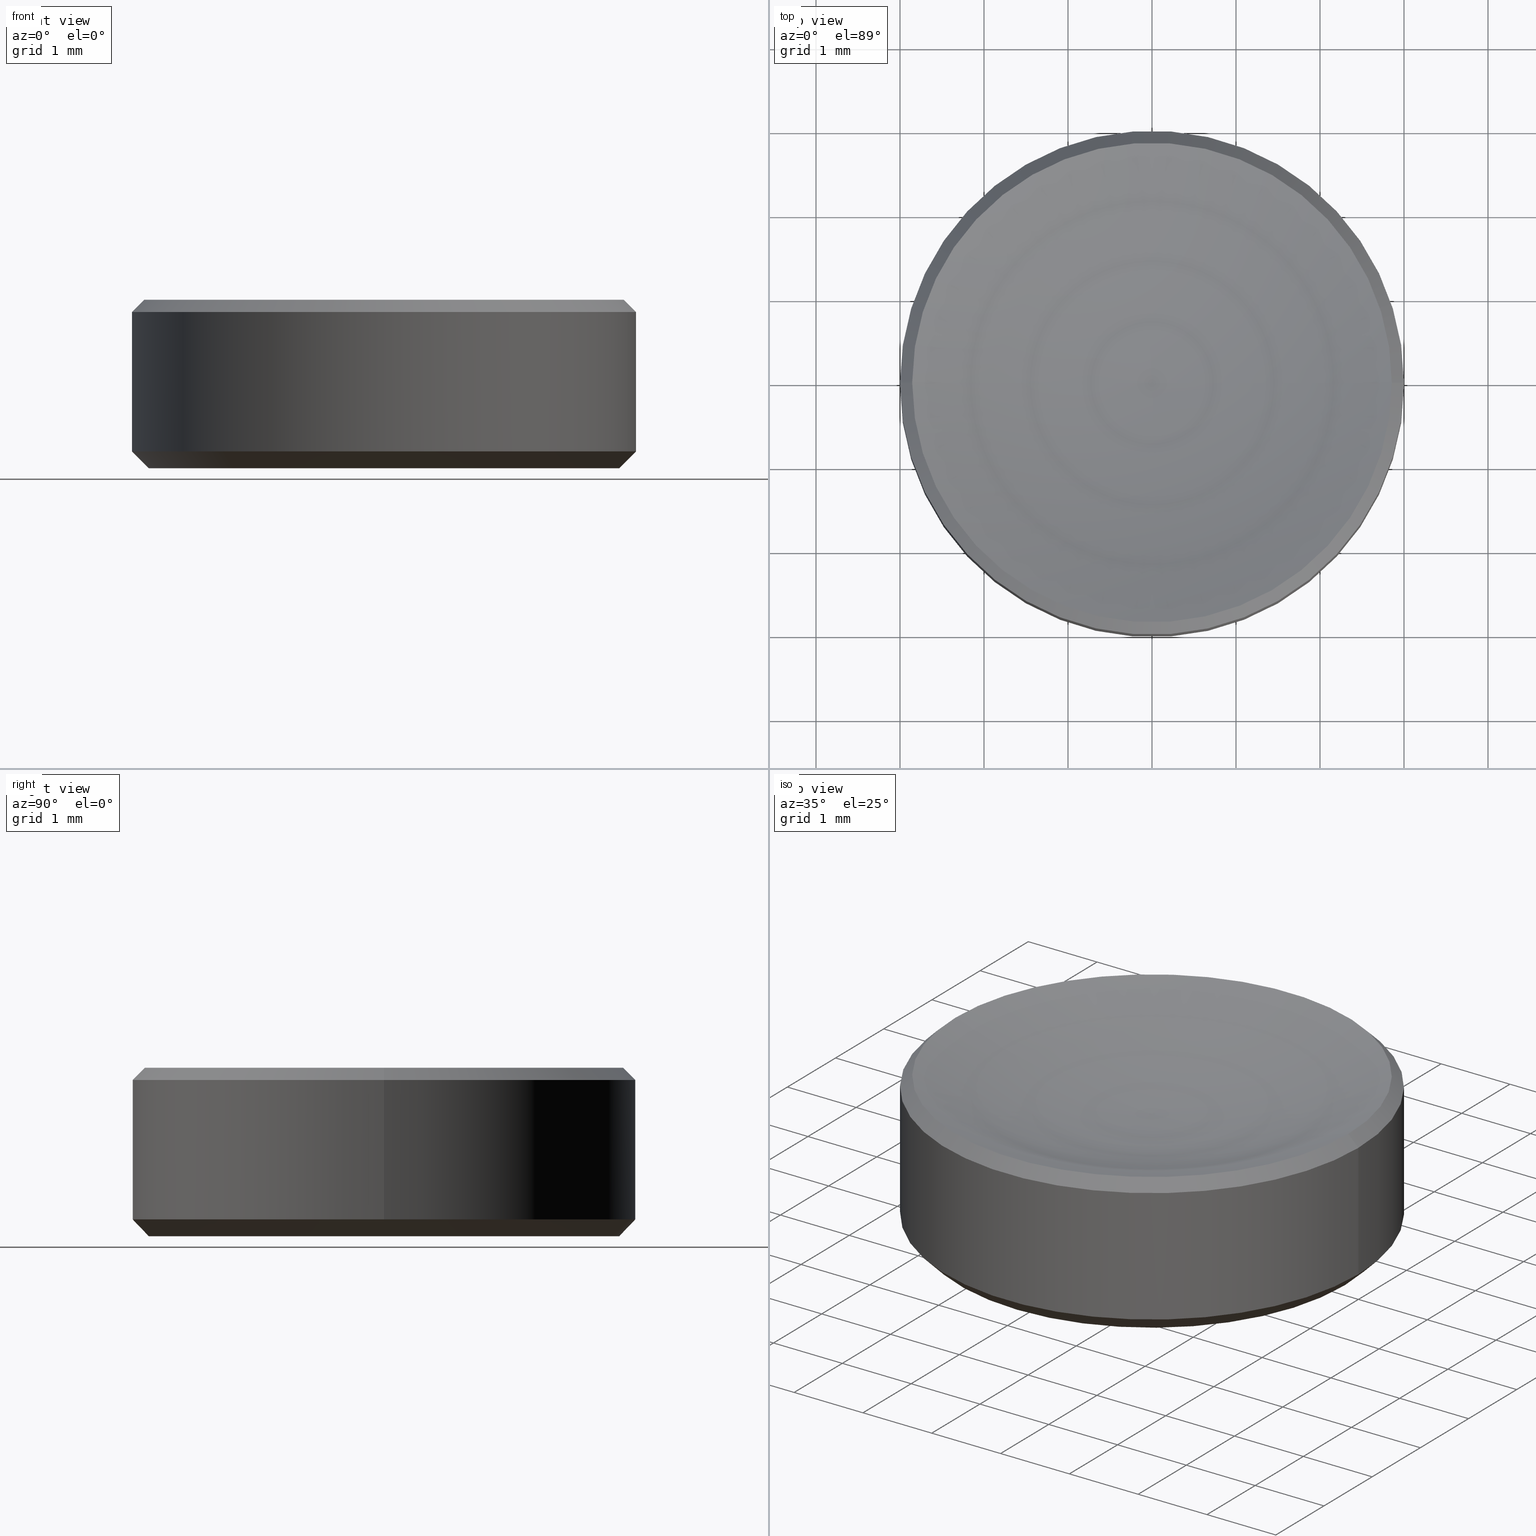
[diagram: canonical four-view strip — front | top / right | iso, engineering-drawing reading convention]
A machine part, canonical four-view strip (front | top / right | iso — engineering-drawing reading convention). The complete STEP part file that produces these views, byte-faithful:
ISO-10303-21;
HEADER;
FILE_DESCRIPTION (( 'STEP AP214' ),
    '1' );
FILE_NAME ('GL13-006A-016.STEP',
    '2022-10-25T12:38:08',
    ( '' ),
    ( '' ),
    'SwSTEP 2.0',
    'SolidWorks 2022',
    '' );
FILE_SCHEMA (( 'AUTOMOTIVE_DESIGN' ));
ENDSEC;

DATA;
#1 = DIRECTION ( 'NONE',  ( -0.000000000000000000, -0.000000000000000000, 1.000000000000000000 ) ) ;
#2 = CARTESIAN_POINT ( 'NONE',  ( 0.000000000000000000, 0.000000000000000000, 1.860000000000000542 ) ) ;
#3 = FACE_OUTER_BOUND ( 'NONE', #8, .T. ) ;
#4 = AXIS2_PLACEMENT_3D ( 'NONE', #81, #102, #186 ) ;
#5 = EDGE_CURVE ( 'NONE', #262, #117, #28, .T. ) ;
#6 = EDGE_CURVE ( 'NONE', #117, #57, #260, .T. ) ;
#7 = DIRECTION ( 'NONE',  ( 1.000000000000000000, 0.000000000000000000, 0.000000000000000000 ) ) ;
#8 = EDGE_LOOP ( 'NONE', ( #210, #163, #265, #141 ) ) ;
#9 = AXIS2_PLACEMENT_3D ( 'NONE', #253, #42, #71 ) ;
#10 = ORIENTED_EDGE ( 'NONE', *, *, #240, .F. ) ;
#11 = DIRECTION ( 'NONE',  ( 1.000000000000000000, 0.000000000000000000, 0.000000000000000000 ) ) ;
#12 = AXIS2_PLACEMENT_3D ( 'NONE', #216, #252, #111 ) ;
#13 = AXIS2_PLACEMENT_3D ( 'NONE', #113, #183, #7 ) ;
#14 = CARTESIAN_POINT ( 'NONE',  ( -3.000000000000000000, 3.673940397442059868E-16, 1.860000000000000542 ) ) ;
#15 = ORIENTED_EDGE ( 'NONE', *, *, #155, .T. ) ;
#16 = VECTOR ( 'NONE', #234, 1000.000000000000114 ) ;
#17 = VERTEX_POINT ( 'NONE', #82 ) ;
#18 = PRODUCT_CONTEXT ( 'NONE', #60, 'mechanical' ) ;
#19 = DIRECTION ( 'NONE',  ( -0.7071067811865474617, 0.000000000000000000, -0.7071067811865474617 ) ) ;
#20 = EDGE_LOOP ( 'NONE', ( #37, #53, #10, #104 ) ) ;
#21 = FILL_AREA_STYLE ('',( #153 ) ) ;
#22 = AXIS2_PLACEMENT_3D ( 'NONE', #90, #149, #133 ) ;
#23 = DIRECTION ( 'NONE',  ( 1.000000000000000000, 0.000000000000000000, 0.000000000000000000 ) ) ;
#24 = SURFACE_STYLE_USAGE ( .BOTH. , #69 ) ;
#25 = CIRCLE ( 'NONE', #31, 3.000000000000000000 ) ;
#26 = CARTESIAN_POINT ( 'NONE',  ( 0.000000000000000000, 0.000000000000000000, 1.500000000000000000 ) ) ;
#27 = CYLINDRICAL_SURFACE ( 'NONE', #237, 3.000000000000000000 ) ;
#28 = CIRCLE ( 'NONE', #4, 8.259999999999999787 ) ;
#29 = ADVANCED_BREP_SHAPE_REPRESENTATION ( 'GL13-006A-016', ( #70, #152 ), #80 ) ;
#30 = CARTESIAN_POINT ( 'NONE',  ( 0.000000000000000000, 0.000000000000000000, 2.005191786043217572 ) ) ;
#31 = AXIS2_PLACEMENT_3D ( 'NONE', #78, #39, #127 ) ;
#32 = CARTESIAN_POINT ( 'NONE',  ( 0.000000000000000000, 0.000000000000000000, 9.759993451242674922 ) ) ;
#33 = SURFACE_SIDE_STYLE ('',( #185 ) ) ;
#34 = ORIENTED_EDGE ( 'NONE', *, *, #176, .T. ) ;
#35 = FILL_AREA_STYLE ('',( #221 ) ) ;
#36 = UNCERTAINTY_MEASURE_WITH_UNIT (LENGTH_MEASURE( 1.000000000000000082E-05 ), #119, 'distance_accuracy_value', 'NONE');
#37 = ORIENTED_EDGE ( 'NONE', *, *, #229, .F. ) ;
#38 =( GEOMETRIC_REPRESENTATION_CONTEXT ( 3 ) GLOBAL_UNCERTAINTY_ASSIGNED_CONTEXT ( ( #61 ) ) GLOBAL_UNIT_ASSIGNED_CONTEXT ( ( #235, #108, #89 ) ) REPRESENTATION_CONTEXT ( 'NONE', 'WORKASPACE' ) );
#39 = DIRECTION ( 'NONE',  ( -0.000000000000000000, -0.000000000000000000, 1.000000000000000000 ) ) ;
#40 = ORIENTED_EDGE ( 'NONE', *, *, #6, .T. ) ;
#41 = ADVANCED_FACE ( 'NONE', ( #62 ), #73, .T. ) ;
#42 = DIRECTION ( 'NONE',  ( -0.000000000000000000, -0.000000000000000000, 1.000000000000000000 ) ) ;
#43 = COLOUR_RGB ( '',1.000000000000000000, 1.000000000000000000, 1.000000000000000000 ) ;
#44 = PLANE ( 'NONE',  #130 ) ;
#45 = LINE ( 'NONE', #236, #16 ) ;
#46 = CARTESIAN_POINT ( 'NONE',  ( 0.000000000000000000, 0.000000000000000000, 2.005191786043217572 ) ) ;
#47 = AXIS2_PLACEMENT_3D ( 'NONE', #30, #219, #246 ) ;
#48 = LINE ( 'NONE', #144, #244 ) ;
#49 = ORIENTED_EDGE ( 'NONE', *, *, #105, .T. ) ;
#50 = CARTESIAN_POINT ( 'NONE',  ( 0.000000000000000000, 0.000000000000000000, 1.500000000000000000 ) ) ;
#51 = EDGE_CURVE ( 'NONE', #114, #187, #25, .T. ) ;
#52 = ADVANCED_FACE ( 'NONE', ( #208 ), #125, .F. ) ;
#53 = ORIENTED_EDGE ( 'NONE', *, *, #65, .T. ) ;
#54 = DIRECTION ( 'NONE',  ( 1.000000000000000000, 0.000000000000000000, 0.000000000000000000 ) ) ;
#55 = ORIENTED_EDGE ( 'NONE', *, *, #193, .F. ) ;
#56 = CIRCLE ( 'NONE', #170, 2.799999999999998046 ) ;
#57 = VERTEX_POINT ( 'NONE', #14 ) ;
#58 = DIRECTION ( 'NONE',  ( 0.000000000000000000, 0.000000000000000000, -1.000000000000000000 ) ) ;
#59 = ORIENTED_EDGE ( 'NONE', *, *, #51, .F. ) ;
#60 = APPLICATION_CONTEXT ( 'automotive_design' ) ;
#61 = UNCERTAINTY_MEASURE_WITH_UNIT (LENGTH_MEASURE( 1.000000000000000082E-05 ), #235, 'distance_accuracy_value', 'NONE');
#62 = FACE_OUTER_BOUND ( 'NONE', #159, .T. ) ;
#63 = CIRCLE ( 'NONE', #158, 3.000000000000000000 ) ;
#64 = LINE ( 'NONE', #83, #180 ) ;
#65 = EDGE_CURVE ( 'NONE', #17, #248, #64, .T. ) ;
#66 = DIRECTION ( 'NONE',  ( -1.000000000000000000, 0.000000000000000000, 0.000000000000000000 ) ) ;
#67 = DIRECTION ( 'NONE',  ( 0.000000000000000000, 0.000000000000000000, -1.000000000000000000 ) ) ;
#68 = VECTOR ( 'NONE', #239, 1000.000000000000000 ) ;
#69 = SURFACE_SIDE_STYLE ('',( #131 ) ) ;
#70 = MANIFOLD_SOLID_BREP ( '����2', #217 ) ;
#71 = DIRECTION ( 'NONE',  ( 1.000000000000000000, 0.000000000000000000, 0.000000000000000000 ) ) ;
#72 = PRODUCT_DEFINITION_CONTEXT ( 'detailed design', #205, 'design' ) ;
#73 = CONICAL_SURFACE ( 'NONE', #233, 3.000000000000000000, 0.7853981633974482790 ) ;
#74 = DIRECTION ( 'NONE',  ( -0.000000000000000000, -0.000000000000000000, 1.000000000000000000 ) ) ;
#75 = CONICAL_SURFACE ( 'NONE', #228, 3.000000000000000000, 0.7853981633974482790 ) ;
#76 =( NAMED_UNIT ( * ) SI_UNIT ( $, .STERADIAN. ) SOLID_ANGLE_UNIT ( ) );
#77 = SURFACE_STYLE_USAGE ( .BOTH. , #33 ) ;
#78 = CARTESIAN_POINT ( 'NONE',  ( 0.000000000000000000, 0.000000000000000000, 0.2000000000000020373 ) ) ;
#79 = CONICAL_SURFACE ( 'NONE', #22, 2.854808213956783192, 0.7853981633974482790 ) ;
#80 =( GEOMETRIC_REPRESENTATION_CONTEXT ( 3 ) GLOBAL_UNCERTAINTY_ASSIGNED_CONTEXT ( ( #36 ) ) GLOBAL_UNIT_ASSIGNED_CONTEXT ( ( #119, #201, #76 ) ) REPRESENTATION_CONTEXT ( 'NONE', 'WORKASPACE' ) );
#81 = CARTESIAN_POINT ( 'NONE',  ( -0.01040122243469864156, 1.273782376187333161E-18, 9.759993451242674922 ) ) ;
#82 = CARTESIAN_POINT ( 'NONE',  ( 2.854808213956783192, 0.000000000000000000, 2.005191786043217572 ) ) ;
#83 = CARTESIAN_POINT ( 'NONE',  ( 2.854808213956783192, 3.496131741401746917E-16, 2.005191786043217572 ) ) ;
#84 = APPLICATION_PROTOCOL_DEFINITION ( 'draft international standard', 'automotive_design', 1998, #205 ) ;
#85 = PRODUCT_RELATED_PRODUCT_CATEGORY ( 'part', '', ( #200 ) ) ;
#86 = CIRCLE ( 'NONE', #12, 2.799999999999998046 ) ;
#87 = CARTESIAN_POINT ( 'NONE',  ( -2.854808213956783192, 3.496131741401746917E-16, 2.005191786043217572 ) ) ;
#88 = CARTESIAN_POINT ( 'NONE',  ( 3.000000000000000000, 0.000000000000000000, 0.2000000000000020373 ) ) ;
#89 =( NAMED_UNIT ( * ) SI_UNIT ( $, .STERADIAN. ) SOLID_ANGLE_UNIT ( ) );
#90 = CARTESIAN_POINT ( 'NONE',  ( 0.000000000000000000, 0.000000000000000000, 2.005191786043217572 ) ) ;
#91 = DIRECTION ( 'NONE',  ( -1.000000000000000000, 0.000000000000000000, 0.000000000000000000 ) ) ;
#92 = APPLICATION_PROTOCOL_DEFINITION ( 'draft international standard', 'automotive_design', 1998, #60 ) ;
#93 = AXIS2_PLACEMENT_3D ( 'NONE', #26, #238, #11 ) ;
#94 = EDGE_CURVE ( 'NONE', #248, #57, #63, .T. ) ;
#95 = PRESENTATION_LAYER_ASSIGNMENT (  '', '', ( #115 ) ) ;
#96 = CARTESIAN_POINT ( 'NONE',  ( -3.000000000000000000, 3.673940397442059868E-16, 0.2000000000000020373 ) ) ;
#97 = CARTESIAN_POINT ( 'NONE',  ( 0.000000000000000000, 0.000000000000000000, 1.836970198721029934E-16 ) ) ;
#98 = ORIENTED_EDGE ( 'NONE', *, *, #94, .F. ) ;
#99 =( NAMED_UNIT ( * ) PLANE_ANGLE_UNIT ( ) SI_UNIT ( $, .RADIAN. ) );
#100 = ORIENTED_EDGE ( 'NONE', *, *, #145, .F. ) ;
#101 = CONICAL_SURFACE ( 'NONE', #188, 2.854808213956783192, 0.7853981633974482790 ) ;
#102 = DIRECTION ( 'NONE',  ( 1.224646799147353207E-16, 1.000000000000000000, 0.000000000000000000 ) ) ;
#103 = SHAPE_DEFINITION_REPRESENTATION ( #175, #29 ) ;
#104 = ORIENTED_EDGE ( 'NONE', *, *, #6, .F. ) ;
#105 = EDGE_CURVE ( 'NONE', #262, #17, #257, .T. ) ;
#106 = EDGE_CURVE ( 'NONE', #167, #114, #173, .T. ) ;
#107 = ORIENTED_EDGE ( 'NONE', *, *, #240, .T. ) ;
#108 =( NAMED_UNIT ( * ) PLANE_ANGLE_UNIT ( ) SI_UNIT ( $, .RADIAN. ) );
#109 = DIRECTION ( 'NONE',  ( 0.000000000000000000, 0.000000000000000000, -1.000000000000000000 ) ) ;
#110 = DIRECTION ( 'NONE',  ( 0.000000000000000000, 0.000000000000000000, -1.000000000000000000 ) ) ;
#111 = DIRECTION ( 'NONE',  ( 1.000000000000000000, 0.000000000000000000, 0.000000000000000000 ) ) ;
#112 = PRESENTATION_LAYER_ASSIGNMENT (  '', '', ( #189 ) ) ;
#113 = CARTESIAN_POINT ( 'NONE',  ( 0.000000000000000000, 0.000000000000000000, 9.759993451242674922 ) ) ;
#114 = VERTEX_POINT ( 'NONE', #150 ) ;
#115 = STYLED_ITEM ( 'NONE', ( #154 ), #70 ) ;
#116 = CARTESIAN_POINT ( 'NONE',  ( 3.000000000000000000, 0.000000000000000000, 1.500000000000000000 ) ) ;
#117 = VERTEX_POINT ( 'NONE', #87 ) ;
#118 = AXIS2_PLACEMENT_3D ( 'NONE', #32, #203, #250 ) ;
#119 =( LENGTH_UNIT ( ) NAMED_UNIT ( * ) SI_UNIT ( .MILLI., .METRE. ) );
#120 = EDGE_LOOP ( 'NONE', ( #34, #222 ) ) ;
#121 = ADVANCED_FACE ( 'NONE', ( #3 ), #75, .T. ) ;
#122 =( LENGTH_UNIT ( ) NAMED_UNIT ( * ) SI_UNIT ( .MILLI., .METRE. ) );
#123 = EDGE_LOOP ( 'NONE', ( #206, #161, #204 ) ) ;
#124 = ORIENTED_EDGE ( 'NONE', *, *, #193, .T. ) ;
#125 = TOROIDAL_SURFACE ( 'NONE', #118, 0.01040122243469864156, 8.259999999999999787 ) ;
#126 = UNCERTAINTY_MEASURE_WITH_UNIT (LENGTH_MEASURE( 1.000000000000000082E-05 ), #122, 'distance_accuracy_value', 'NONE');
#127 = DIRECTION ( 'NONE',  ( 1.000000000000000000, 0.000000000000000000, 0.000000000000000000 ) ) ;
#128 = ORIENTED_EDGE ( 'NONE', *, *, #137, .T. ) ;
#129 = DIRECTION ( 'NONE',  ( 1.000000000000000000, 0.000000000000000000, 0.000000000000000000 ) ) ;
#130 = AXIS2_PLACEMENT_3D ( 'NONE', #211, #132, #23 ) ;
#131 = SURFACE_STYLE_FILL_AREA ( #21 ) ;
#132 = DIRECTION ( 'NONE',  ( 0.000000000000000000, -0.000000000000000000, 1.000000000000000000 ) ) ;
#133 = DIRECTION ( 'NONE',  ( -1.000000000000000000, 0.000000000000000000, 0.000000000000000000 ) ) ;
#134 = PRODUCT_DEFINITION_FORMATION_WITH_SPECIFIED_SOURCE ( '�κ�', '', #200, .NOT_KNOWN. ) ;
#135 = DIRECTION ( 'NONE',  ( -1.000000000000000000, 0.000000000000000000, 0.000000000000000000 ) ) ;
#136 = AXIS2_PLACEMENT_3D ( 'NONE', #194, #232, #67 ) ;
#137 = EDGE_CURVE ( 'NONE', #245, #187, #45, .T. ) ;
#138 = ADVANCED_FACE ( 'NONE', ( #255 ), #79, .T. ) ;
#139 = FACE_OUTER_BOUND ( 'NONE', #226, .T. ) ;
#140 = FACE_OUTER_BOUND ( 'NONE', #202, .T. ) ;
#141 = ORIENTED_EDGE ( 'NONE', *, *, #155, .F. ) ;
#142 = EDGE_LOOP ( 'NONE', ( #224, #242, #107, #55 ) ) ;
#143 = ORIENTED_EDGE ( 'NONE', *, *, #65, .F. ) ;
#144 = CARTESIAN_POINT ( 'NONE',  ( -3.000000000000000000, 3.673940397442059868E-16, 1.500000000000000000 ) ) ;
#145 = EDGE_CURVE ( 'NONE', #117, #17, #251, .T. ) ;
#146 = DIRECTION ( 'NONE',  ( -0.000000000000000000, -0.000000000000000000, 1.000000000000000000 ) ) ;
#147 = VECTOR ( 'NONE', #19, 1000.000000000000114 ) ;
#148 = DIRECTION ( 'NONE',  ( 0.7071067811865474617, 8.659560562354932858E-17, -0.7071067811865474617 ) ) ;
#149 = DIRECTION ( 'NONE',  ( 0.000000000000000000, 0.000000000000000000, -1.000000000000000000 ) ) ;
#150 = CARTESIAN_POINT ( 'NONE',  ( 3.000000000000000000, 0.000000000000000000, 0.2000000000000020373 ) ) ;
#151 = PRODUCT_DEFINITION ( 'δ֪', '', #134, #72 ) ;
#152 = AXIS2_PLACEMENT_3D ( 'NONE', #169, #209, #195 ) ;
#153 = FILL_AREA_STYLE_COLOUR ( '', #43 ) ;
#154 = PRESENTATION_STYLE_ASSIGNMENT (( #24 ) ) ;
#155 = EDGE_CURVE ( 'NONE', #187, #114, #198, .T. ) ;
#156 = FACE_OUTER_BOUND ( 'NONE', #120, .T. ) ;
#157 = CARTESIAN_POINT ( 'NONE',  ( -2.799999999999998046, 3.551475717527323339E-16, 1.836970198721029934E-16 ) ) ;
#158 = AXIS2_PLACEMENT_3D ( 'NONE', #2, #109, #66 ) ;
#159 = EDGE_LOOP ( 'NONE', ( #241, #128, #59, #247 ) ) ;
#160 = ADVANCED_FACE ( 'NONE', ( #156 ), #44, .F. ) ;
#161 = ORIENTED_EDGE ( 'NONE', *, *, #5, .T. ) ;
#162 = CARTESIAN_POINT ( 'NONE',  ( 0.000000000000000000, 0.000000000000000000, 1.500000000000000000 ) ) ;
#163 = ORIENTED_EDGE ( 'NONE', *, *, #176, .F. ) ;
#164 = AXIS2_PLACEMENT_3D ( 'NONE', #223, #58, #91 ) ;
#165 = DIRECTION ( 'NONE',  ( 0.000000000000000000, 0.000000000000000000, -1.000000000000000000 ) ) ;
#166 = ORIENTED_EDGE ( 'NONE', *, *, #94, .T. ) ;
#167 = VERTEX_POINT ( 'NONE', #171 ) ;
#168 = EDGE_LOOP ( 'NONE', ( #143, #100, #40, #98 ) ) ;
#169 = CARTESIAN_POINT ( 'NONE',  ( 0.000000000000000000, 0.000000000000000000, 0.000000000000000000 ) ) ;
#170 = AXIS2_PLACEMENT_3D ( 'NONE', #97, #165, #178 ) ;
#171 = CARTESIAN_POINT ( 'NONE',  ( 2.799999999999998046, 0.000000000000000000, 1.836970198721029934E-16 ) ) ;
#172 = DIRECTION ( 'NONE',  ( 0.7071067811865474617, 0.000000000000000000, 0.7071067811865474617 ) ) ;
#173 = LINE ( 'NONE', #88, #179 ) ;
#174 = CIRCLE ( 'NONE', #47, 2.854808213956783192 ) ;
#175 = PRODUCT_DEFINITION_SHAPE ( 'NONE', 'NONE',  #151 ) ;
#176 = EDGE_CURVE ( 'NONE', #167, #245, #86, .T. ) ;
#177 = DIRECTION ( 'NONE',  ( -0.000000000000000000, -0.000000000000000000, 1.000000000000000000 ) ) ;
#178 = DIRECTION ( 'NONE',  ( 1.000000000000000000, 0.000000000000000000, 0.000000000000000000 ) ) ;
#179 = VECTOR ( 'NONE', #172, 1000.000000000000114 ) ;
#180 = VECTOR ( 'NONE', #148, 1000.000000000000114 ) ;
#181 = CIRCLE ( 'NONE', #164, 3.000000000000000000 ) ;
#182 = ADVANCED_FACE ( 'NONE', ( #199 ), #101, .T. ) ;
#183 = DIRECTION ( 'NONE',  ( -0.000000000000000000, -0.000000000000000000, 1.000000000000000000 ) ) ;
#184 = ADVANCED_FACE ( 'NONE', ( #197 ), #218, .T. ) ;
#185 = SURFACE_STYLE_FILL_AREA ( #35 ) ;
#186 = DIRECTION ( 'NONE',  ( -1.000000000000000000, 1.224646799147353207E-16, 0.000000000000000000 ) ) ;
#187 = VERTEX_POINT ( 'NONE', #96 ) ;
#188 = AXIS2_PLACEMENT_3D ( 'NONE', #46, #110, #135 ) ;
#189 = STYLED_ITEM ( 'NONE', ( #243 ), #29 ) ;
#190 = ORIENTED_EDGE ( 'NONE', *, *, #5, .F. ) ;
#191 = CARTESIAN_POINT ( 'NONE',  ( 0.000000000000000000, 0.000000000000000000, 0.2000000000000020373 ) ) ;
#192 = ORIENTED_EDGE ( 'NONE', *, *, #220, .F. ) ;
#193 = EDGE_CURVE ( 'NONE', #114, #248, #256, .T. ) ;
#194 = CARTESIAN_POINT ( 'NONE',  ( 0.01040122243469864156, 0.000000000000000000, 9.759993451242674922 ) ) ;
#195 = DIRECTION ( 'NONE',  ( 1.000000000000000000, 0.000000000000000000, 0.000000000000000000 ) ) ;
#196 = DIRECTION ( 'NONE',  ( 1.000000000000000000, 0.000000000000000000, 0.000000000000000000 ) ) ;
#197 = FACE_OUTER_BOUND ( 'NONE', #142, .T. ) ;
#198 = CIRCLE ( 'NONE', #212, 3.000000000000000000 ) ;
#199 = FACE_OUTER_BOUND ( 'NONE', #168, .T. ) ;
#200 = PRODUCT ( 'GL13-006A-016', 'GL13-006A-016', '', ( #18 ) ) ;
#201 =( NAMED_UNIT ( * ) PLANE_ANGLE_UNIT ( ) SI_UNIT ( $, .RADIAN. ) );
#202 = EDGE_LOOP ( 'NONE', ( #192, #15, #124, #166 ) ) ;
#203 = DIRECTION ( 'NONE',  ( -0.000000000000000000, -0.000000000000000000, 1.000000000000000000 ) ) ;
#204 = ORIENTED_EDGE ( 'NONE', *, *, #145, .T. ) ;
#205 = APPLICATION_CONTEXT ( 'automotive_design' ) ;
#206 = ORIENTED_EDGE ( 'NONE', *, *, #105, .F. ) ;
#207 =( GEOMETRIC_REPRESENTATION_CONTEXT ( 3 ) GLOBAL_UNCERTAINTY_ASSIGNED_CONTEXT ( ( #126 ) ) GLOBAL_UNIT_ASSIGNED_CONTEXT ( ( #122, #99, #213 ) ) REPRESENTATION_CONTEXT ( 'NONE', 'WORKASPACE' ) );
#208 = FACE_OUTER_BOUND ( 'NONE', #123, .T. ) ;
#209 = DIRECTION ( 'NONE',  ( 0.000000000000000000, 0.000000000000000000, 1.000000000000000000 ) ) ;
#210 = ORIENTED_EDGE ( 'NONE', *, *, #137, .F. ) ;
#211 = CARTESIAN_POINT ( 'NONE',  ( 0.000000000000000000, 0.000000000000000000, 1.836970198721029934E-16 ) ) ;
#212 = AXIS2_PLACEMENT_3D ( 'NONE', #231, #177, #129 ) ;
#213 =( NAMED_UNIT ( * ) SI_UNIT ( $, .STERADIAN. ) SOLID_ANGLE_UNIT ( ) );
#214 = TOROIDAL_SURFACE ( 'NONE', #13, 0.01040122243469864156, 8.259999999999999787 ) ;
#215 = CARTESIAN_POINT ( 'NONE',  ( 0.000000000000000000, 0.000000000000000000, 0.2000000000000020373 ) ) ;
#216 = CARTESIAN_POINT ( 'NONE',  ( 0.000000000000000000, 0.000000000000000000, 1.836970198721029934E-16 ) ) ;
#217 = CLOSED_SHELL ( 'NONE', ( #138, #41, #184, #52, #259, #264, #160, #121, #182 ) ) ;
#218 = CYLINDRICAL_SURFACE ( 'NONE', #93, 3.000000000000000000 ) ;
#219 = DIRECTION ( 'NONE',  ( -0.000000000000000000, -0.000000000000000000, 1.000000000000000000 ) ) ;
#220 = EDGE_CURVE ( 'NONE', #187, #57, #48, .T. ) ;
#221 = FILL_AREA_STYLE_COLOUR ( '', #261 ) ;
#222 = ORIENTED_EDGE ( 'NONE', *, *, #249, .T. ) ;
#223 = CARTESIAN_POINT ( 'NONE',  ( 0.000000000000000000, 0.000000000000000000, 1.860000000000000542 ) ) ;
#224 = ORIENTED_EDGE ( 'NONE', *, *, #51, .T. ) ;
#225 = CARTESIAN_POINT ( 'NONE',  ( 3.000000000000000000, 0.000000000000000000, 1.860000000000000542 ) ) ;
#226 = EDGE_LOOP ( 'NONE', ( #190, #49, #230 ) ) ;
#227 = DIRECTION ( 'NONE',  ( 1.000000000000000000, 0.000000000000000000, 0.000000000000000000 ) ) ;
#228 = AXIS2_PLACEMENT_3D ( 'NONE', #215, #1, #196 ) ;
#229 = EDGE_CURVE ( 'NONE', #17, #117, #174, .T. ) ;
#230 = ORIENTED_EDGE ( 'NONE', *, *, #229, .T. ) ;
#231 = CARTESIAN_POINT ( 'NONE',  ( 0.000000000000000000, 0.000000000000000000, 0.2000000000000020373 ) ) ;
#232 = DIRECTION ( 'NONE',  ( 0.000000000000000000, -1.000000000000000000, 0.000000000000000000 ) ) ;
#233 = AXIS2_PLACEMENT_3D ( 'NONE', #191, #146, #227 ) ;
#234 = DIRECTION ( 'NONE',  ( -0.7071067811865474617, 8.659560562354932858E-17, 0.7071067811865474617 ) ) ;
#235 =( LENGTH_UNIT ( ) NAMED_UNIT ( * ) SI_UNIT ( .MILLI., .METRE. ) );
#236 = CARTESIAN_POINT ( 'NONE',  ( -3.000000000000000000, 3.673940397442059868E-16, 0.2000000000000020373 ) ) ;
#237 = AXIS2_PLACEMENT_3D ( 'NONE', #162, #74, #54 ) ;
#238 = DIRECTION ( 'NONE',  ( -0.000000000000000000, -0.000000000000000000, 1.000000000000000000 ) ) ;
#239 = DIRECTION ( 'NONE',  ( -0.000000000000000000, -0.000000000000000000, 1.000000000000000000 ) ) ;
#240 = EDGE_CURVE ( 'NONE', #57, #248, #181, .T. ) ;
#241 = ORIENTED_EDGE ( 'NONE', *, *, #249, .F. ) ;
#242 = ORIENTED_EDGE ( 'NONE', *, *, #220, .T. ) ;
#243 = PRESENTATION_STYLE_ASSIGNMENT (( #77 ) ) ;
#244 = VECTOR ( 'NONE', #258, 1000.000000000000000 ) ;
#245 = VERTEX_POINT ( 'NONE', #157 ) ;
#246 = DIRECTION ( 'NONE',  ( 1.000000000000000000, 0.000000000000000000, 0.000000000000000000 ) ) ;
#247 = ORIENTED_EDGE ( 'NONE', *, *, #106, .F. ) ;
#248 = VERTEX_POINT ( 'NONE', #225 ) ;
#249 = EDGE_CURVE ( 'NONE', #245, #167, #56, .T. ) ;
#250 = DIRECTION ( 'NONE',  ( 1.000000000000000000, 0.000000000000000000, 0.000000000000000000 ) ) ;
#251 = CIRCLE ( 'NONE', #9, 2.854808213956783192 ) ;
#252 = DIRECTION ( 'NONE',  ( 0.000000000000000000, 0.000000000000000000, -1.000000000000000000 ) ) ;
#253 = CARTESIAN_POINT ( 'NONE',  ( 0.000000000000000000, 0.000000000000000000, 2.005191786043217572 ) ) ;
#254 = MECHANICAL_DESIGN_GEOMETRIC_PRESENTATION_REPRESENTATION (  '', ( #189 ), #207 ) ;
#255 = FACE_OUTER_BOUND ( 'NONE', #20, .T. ) ;
#256 = LINE ( 'NONE', #116, #68 ) ;
#257 = CIRCLE ( 'NONE', #136, 8.259999999999999787 ) ;
#258 = DIRECTION ( 'NONE',  ( -0.000000000000000000, -0.000000000000000000, 1.000000000000000000 ) ) ;
#259 = ADVANCED_FACE ( 'NONE', ( #139 ), #214, .F. ) ;
#260 = LINE ( 'NONE', #263, #147 ) ;
#261 = COLOUR_RGB ( '',1.000000000000000000, 1.000000000000000000, 1.000000000000000000 ) ;
#262 = VERTEX_POINT ( 'NONE', #50 ) ;
#263 = CARTESIAN_POINT ( 'NONE',  ( -2.854808213956783192, 0.000000000000000000, 2.005191786043217572 ) ) ;
#264 = ADVANCED_FACE ( 'NONE', ( #140 ), #27, .T. ) ;
#265 = ORIENTED_EDGE ( 'NONE', *, *, #106, .T. ) ;
#266 = MECHANICAL_DESIGN_GEOMETRIC_PRESENTATION_REPRESENTATION (  '', ( #115 ), #38 ) ;
ENDSEC;
END-ISO-10303-21;
